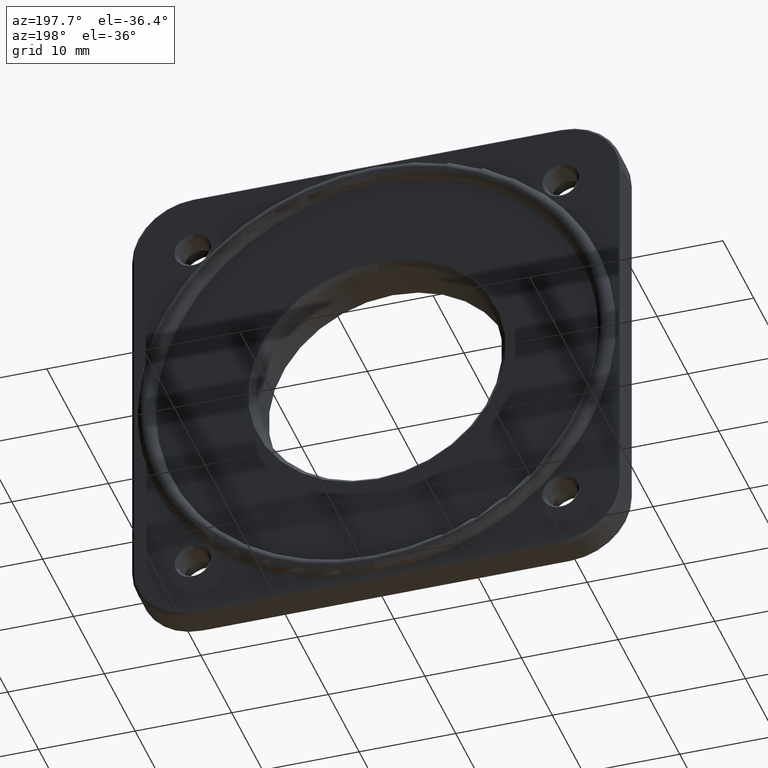
[diagram: clean part render]
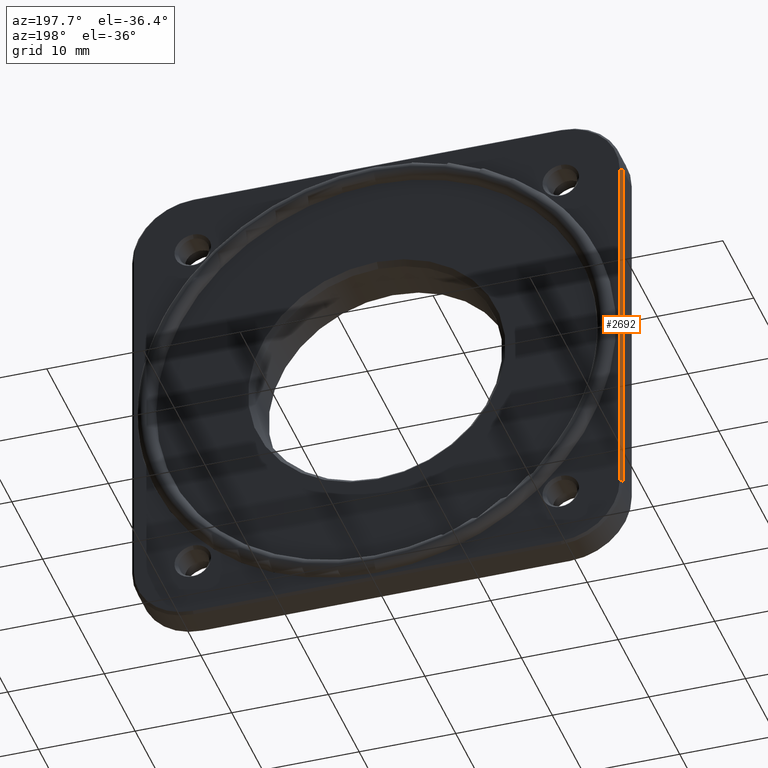
[diagram: same view with one face highlighted and labeled with its STEP entity id]
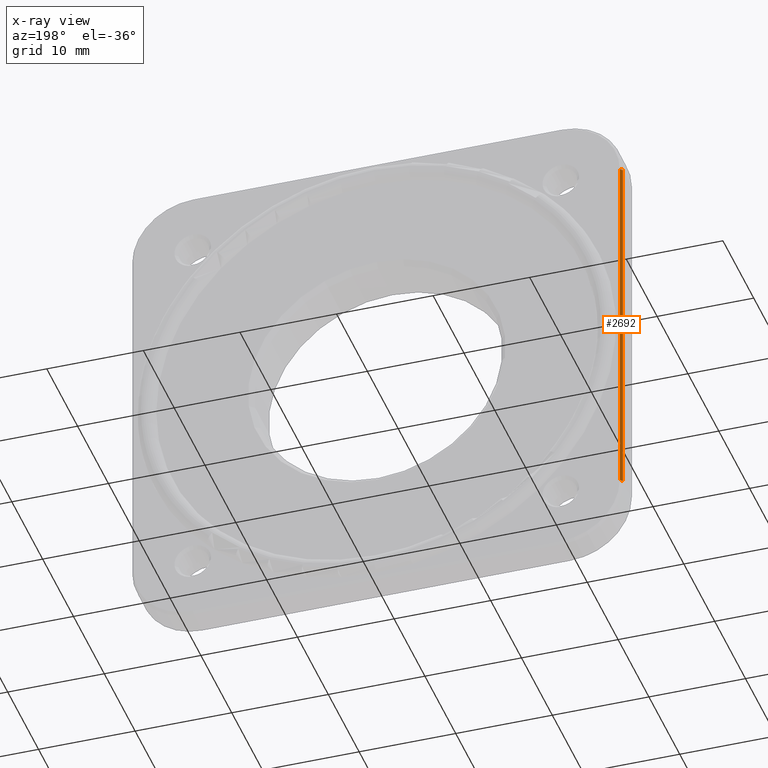
[diagram: x-ray of the same camera — body ghosted, the highlighted face saturated]
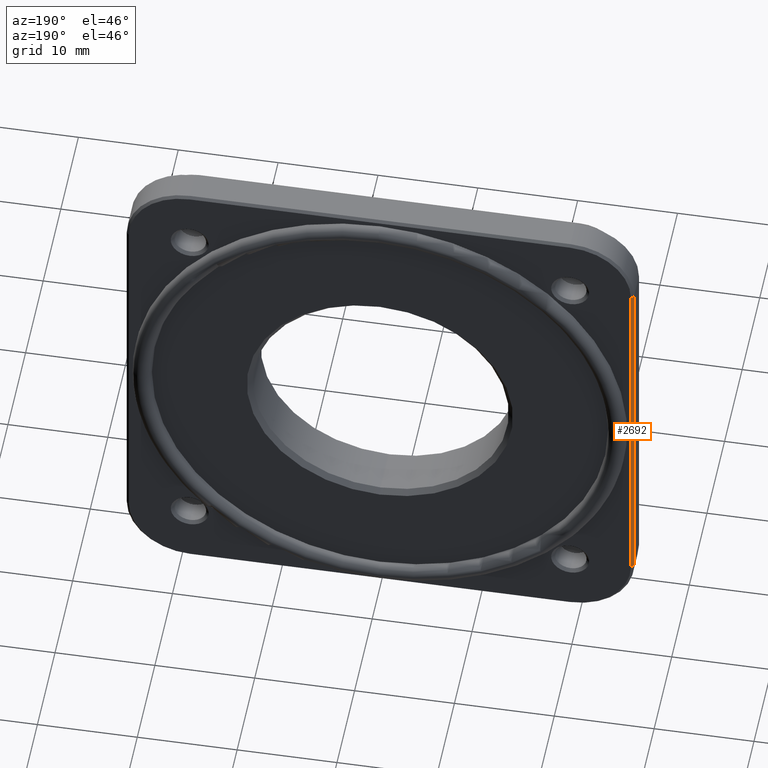
[diagram: same view with one face highlighted and labeled with its STEP entity id]
A machine part, auxiliary view. The second image highlights one B-rep face of the part: STEP entity #2692.
The next image is the same camera in x-ray: the body ghosted, the highlighted face saturated — about 0% of this face is hidden behind the body in this view.
A second angle (auxiliary view) of the same face is appended — the face is thin or edge-on in the first view.
In plain terms, the highlighted planar face has unit normal (-0.7071, 0.7071, 0).
Its self-contained STEP definition (entity closure, byte-faithful):
#18 = DIRECTION ( 'NONE',  ( -0.7071067811865573427, 0.7071067811865378028, 9.658541207454459244E-17 ) ) ;
#60 = AXIS2_PLACEMENT_3D ( 'NONE', #4058, #18, #3750 ) ;
#361 = EDGE_CURVE ( 'NONE', #935, #2664, #4024, .T. ) ;
#415 = LINE ( 'NONE', #3636, #2665 ) ;
#477 = CARTESIAN_POINT ( 'NONE',  ( -25.15000000000000213, 5.599999999999999645, 19.05000000000000782 ) ) ;
#585 = PLANE ( 'NONE',  #60 ) ;
#610 = CARTESIAN_POINT ( 'NONE',  ( -25.15000000000000924, 5.599999999999999645, -19.04999999999999716 ) ) ;
#706 = VECTOR ( 'NONE', #2526, 1000.000000000000000 ) ;
#790 = VERTEX_POINT ( 'NONE', #610 ) ;
#935 = VERTEX_POINT ( 'NONE', #2804 ) ;
#1041 = VERTEX_POINT ( 'NONE', #3335 ) ;
#1275 = CARTESIAN_POINT ( 'NONE',  ( -25.15000000000000213, 5.599999999999999645, 19.05000000000000782 ) ) ;
#1304 = CARTESIAN_POINT ( 'NONE',  ( -25.39999999999999503, 5.349999999999999645, 19.05000000000000782 ) ) ;
#2042 = ORIENTED_EDGE ( 'NONE', *, *, #3930, .F. ) ;
#2526 = DIRECTION ( 'NONE',  ( 1.365923996832131609E-16, 0.000000000000000000, 1.000000000000000000 ) ) ;
#2589 = CARTESIAN_POINT ( 'NONE',  ( -25.40000000000000213, 5.349999999999999645, -19.04999999999999716 ) ) ;
#2664 = VERTEX_POINT ( 'NONE', #1304 ) ;
#2665 = VECTOR ( 'NONE', #2933, 1000.000000000000000 ) ;
#2692 = ADVANCED_FACE ( 'NONE', ( #3557 ), #585, .T. ) ;
#2799 = ORIENTED_EDGE ( 'NONE', *, *, #361, .F. ) ;
#2804 = CARTESIAN_POINT ( 'NONE',  ( -25.15000000000000213, 5.599999999999999645, 19.05000000000000782 ) ) ;
#2845 = ORIENTED_EDGE ( 'NONE', *, *, #3648, .F. ) ;
#2933 = DIRECTION ( 'NONE',  ( 0.7071067811865378028, 0.7071067811865573427, 0.000000000000000000 ) ) ;
#3182 = VECTOR ( 'NONE', #3617, 1000.000000000000000 ) ;
#3237 = EDGE_CURVE ( 'NONE', #1041, #790, #415, .T. ) ;
#3301 = LINE ( 'NONE', #2589, #3746 ) ;
#3335 = CARTESIAN_POINT ( 'NONE',  ( -25.40000000000000213, 5.349999999999999645, -19.04999999999999716 ) ) ;
#3540 = DIRECTION ( 'NONE',  ( -1.365923996832131609E-16, 0.000000000000000000, -1.000000000000000000 ) ) ;
#3557 = FACE_OUTER_BOUND ( 'NONE', #3910, .T. ) ;
#3617 = DIRECTION ( 'NONE',  ( -0.7071067811865378028, -0.7071067811865573427, 0.000000000000000000 ) ) ;
#3636 = CARTESIAN_POINT ( 'NONE',  ( -25.40000000000000213, 5.349999999999999645, -19.04999999999999716 ) ) ;
#3648 = EDGE_CURVE ( 'NONE', #790, #935, #3897, .T. ) ;
#3745 = ORIENTED_EDGE ( 'NONE', *, *, #3237, .F. ) ;
#3746 = VECTOR ( 'NONE', #3540, 1000.000000000000000 ) ;
#3750 = DIRECTION ( 'NONE',  ( -1.365923996832131609E-16, 0.000000000000000000, -1.000000000000000000 ) ) ;
#3897 = LINE ( 'NONE', #1275, #706 ) ;
#3910 = EDGE_LOOP ( 'NONE', ( #3745, #2042, #2799, #2845 ) ) ;
#3930 = EDGE_CURVE ( 'NONE', #2664, #1041, #3301, .T. ) ;
#4024 = LINE ( 'NONE', #477, #3182 ) ;
#4058 = CARTESIAN_POINT ( 'NONE',  ( -25.15000000000000568, 5.599999999999999645, 3.435298852032811564E-15 ) ) ;